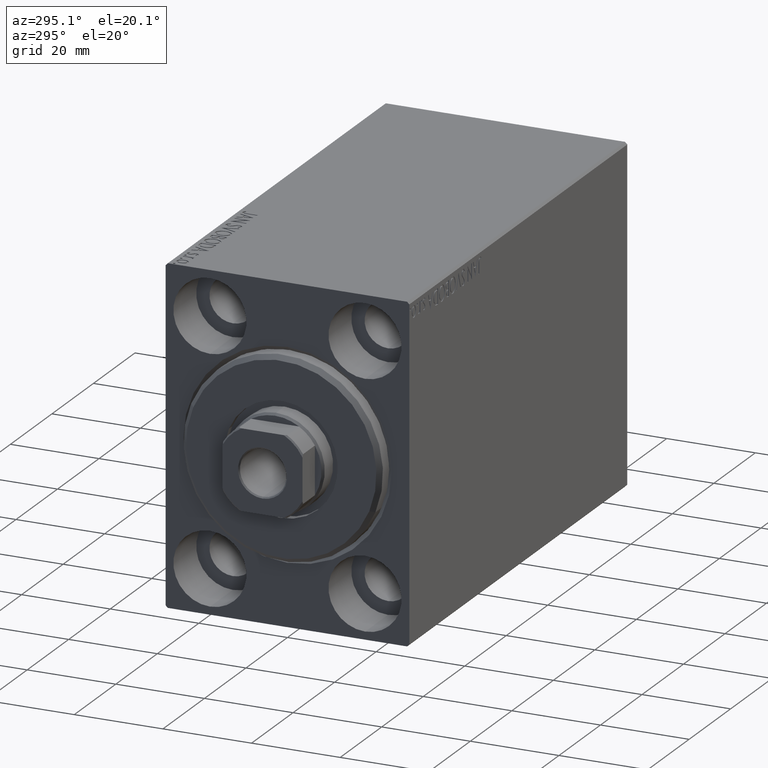
[diagram: clean part render]
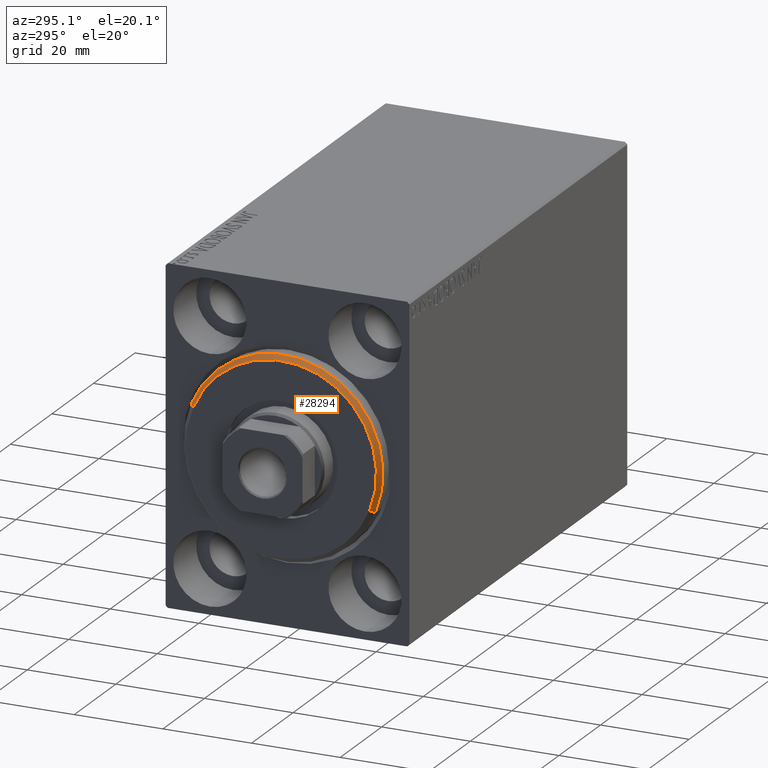
[diagram: same view with one face highlighted and labeled with its STEP entity id]
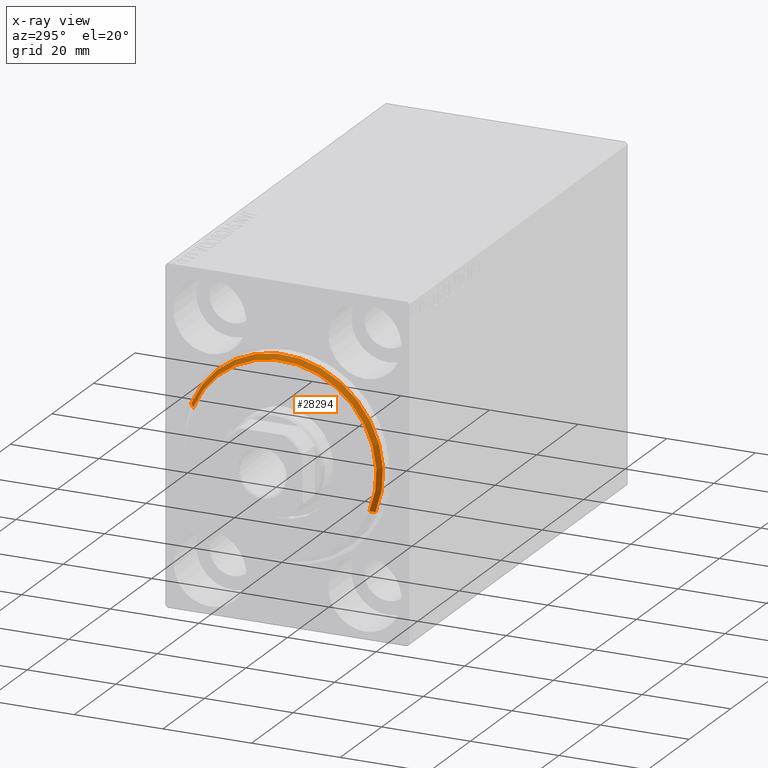
[diagram: x-ray of the same camera — body ghosted, the highlighted face saturated]
A machine part, auxiliary view. The second image highlights one B-rep face of the part: STEP entity #28294.
The next image is the same camera in x-ray: the body ghosted, the highlighted face saturated — about 0% of this face is hidden behind the body in this view.
In plain terms, the highlighted conical surface has half-angle 45 deg.
Its self-contained STEP definition (entity closure, byte-faithful):
#359 = CARTESIAN_POINT ( 'NONE',  ( 3.000000000000000000, 0.000000000000000000, 21.50000000000000355 ) ) ;
#577 = ORIENTED_EDGE ( 'NONE', *, *, #36194, .F. ) ;
#655 = VECTOR ( 'NONE', #25316, 1000.000000000000000 ) ;
#665 = LINE ( 'NONE', #27548, #33394 ) ;
#2381 = CIRCLE ( 'NONE', #35469, 22.50000000000000355 ) ;
#2935 = EDGE_LOOP ( 'NONE', ( #28860, #28618, #7516, #577 ) ) ;
#2950 = AXIS2_PLACEMENT_3D ( 'NONE', #12883, #43501, #26334 ) ;
#4627 = DIRECTION ( 'NONE',  ( -0.7071067811865487940, 0.000000000000000000, 0.7071067811865463515 ) ) ;
#4821 = LINE ( 'NONE', #21580, #655 ) ;
#6632 = DIRECTION ( 'NONE',  ( -1.000000000000000000, 0.000000000000000000, 0.000000000000000000 ) ) ;
#7259 = VERTEX_POINT ( 'NONE', #359 ) ;
#7516 = ORIENTED_EDGE ( 'NONE', *, *, #11424, .T. ) ;
#7842 = CIRCLE ( 'NONE', #25482, 21.50000000000000355 ) ;
#7868 = VERTEX_POINT ( 'NONE', #31456 ) ;
#11424 = EDGE_CURVE ( 'NONE', #7259, #12081, #665, .T. ) ;
#12081 = VERTEX_POINT ( 'NONE', #41777 ) ;
#12883 = CARTESIAN_POINT ( 'NONE',  ( 3.000000000000000000, 0.000000000000000000, 0.000000000000000000 ) ) ;
#14229 = CARTESIAN_POINT ( 'NONE',  ( 1.999999999999999112, 2.755455298081545172E-15, -22.50000000000000355 ) ) ;
#15053 = CARTESIAN_POINT ( 'NONE',  ( 3.000000000000000000, 0.000000000000000000, 0.000000000000000000 ) ) ;
#17507 = DIRECTION ( 'NONE',  ( 1.000000000000000000, -0.000000000000000000, 0.000000000000000000 ) ) ;
#21580 = CARTESIAN_POINT ( 'NONE',  ( 3.000000000000000000, 2.632990618166810024E-15, -21.50000000000000355 ) ) ;
#22076 = EDGE_CURVE ( 'NONE', #7868, #24278, #4821, .T. ) ;
#24278 = VERTEX_POINT ( 'NONE', #14229 ) ;
#24768 = DIRECTION ( 'NONE',  ( 0.000000000000000000, 0.000000000000000000, -1.000000000000000000 ) ) ;
#25316 = DIRECTION ( 'NONE',  ( -0.7071067811865487940, 8.659560562354919300E-17, -0.7071067811865463515 ) ) ;
#25482 = AXIS2_PLACEMENT_3D ( 'NONE', #15053, #17507, #24768 ) ;
#26247 = DIRECTION ( 'NONE',  ( 0.000000000000000000, 0.000000000000000000, -1.000000000000000000 ) ) ;
#26334 = DIRECTION ( 'NONE',  ( 0.000000000000000000, 0.000000000000000000, 1.000000000000000000 ) ) ;
#27548 = CARTESIAN_POINT ( 'NONE',  ( 3.000000000000000000, 0.000000000000000000, 21.50000000000000355 ) ) ;
#28294 = ADVANCED_FACE ( 'NONE', ( #30724 ), #36697, .T. ) ;
#28618 = ORIENTED_EDGE ( 'NONE', *, *, #29277, .F. ) ;
#28860 = ORIENTED_EDGE ( 'NONE', *, *, #22076, .F. ) ;
#29277 = EDGE_CURVE ( 'NONE', #7259, #7868, #7842, .T. ) ;
#30724 = FACE_OUTER_BOUND ( 'NONE', #2935, .T. ) ;
#31456 = CARTESIAN_POINT ( 'NONE',  ( 3.000000000000000000, 2.694222958124177598E-15, -21.50000000000000355 ) ) ;
#33394 = VECTOR ( 'NONE', #4627, 1000.000000000000000 ) ;
#35469 = AXIS2_PLACEMENT_3D ( 'NONE', #42979, #6632, #26247 ) ;
#36194 = EDGE_CURVE ( 'NONE', #24278, #12081, #2381, .T. ) ;
#36697 = CONICAL_SURFACE ( 'NONE', #2950, 21.50000000000000355, 0.7853981633974466137 ) ;
#41777 = CARTESIAN_POINT ( 'NONE',  ( 1.999999999999999112, 0.000000000000000000, 22.50000000000000355 ) ) ;
#42979 = CARTESIAN_POINT ( 'NONE',  ( 1.999999999999999112, 0.000000000000000000, 0.000000000000000000 ) ) ;
#43501 = DIRECTION ( 'NONE',  ( -1.000000000000000000, 0.000000000000000000, 0.000000000000000000 ) ) ;